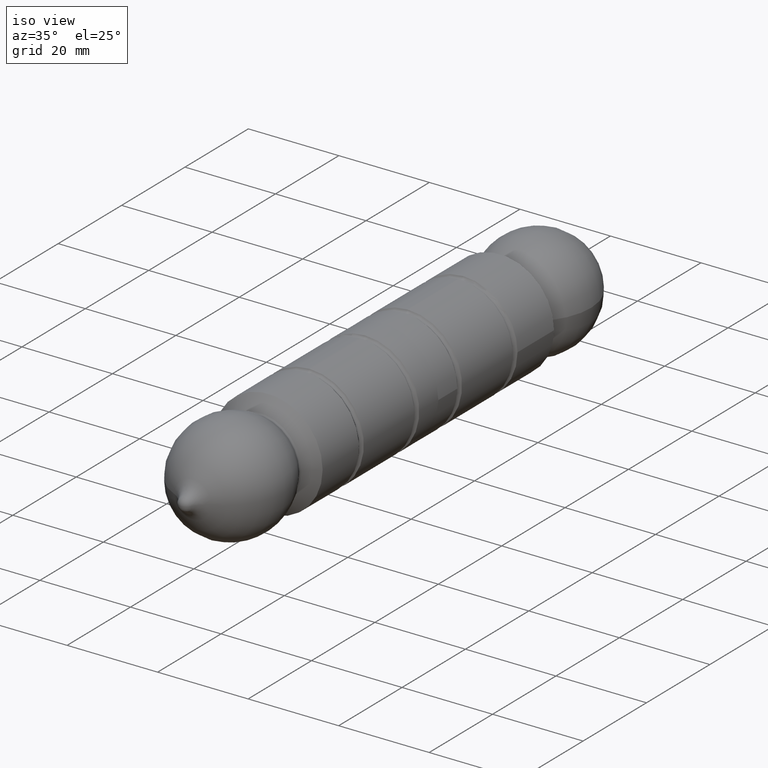
[diagram: clean part render]
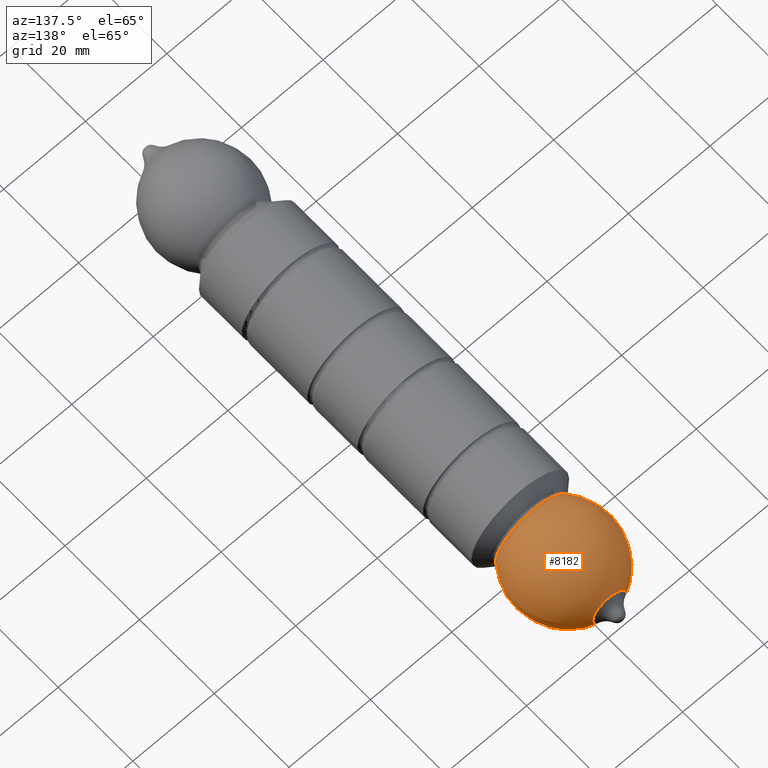
[diagram: tour spotlight — one face highlighted and labeled with its STEP entity id]
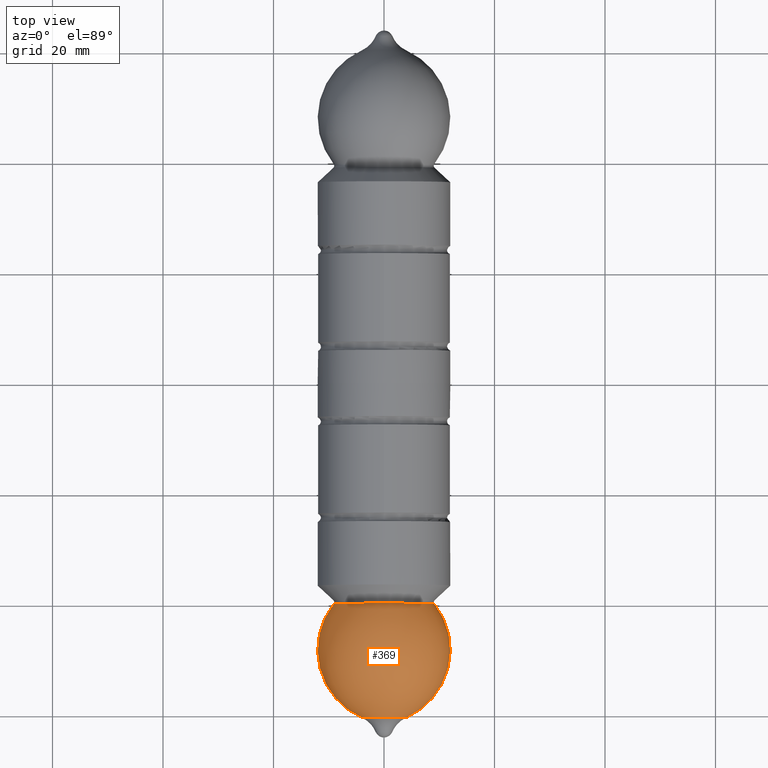
[diagram: tour spotlight — one face highlighted and labeled with its STEP entity id]
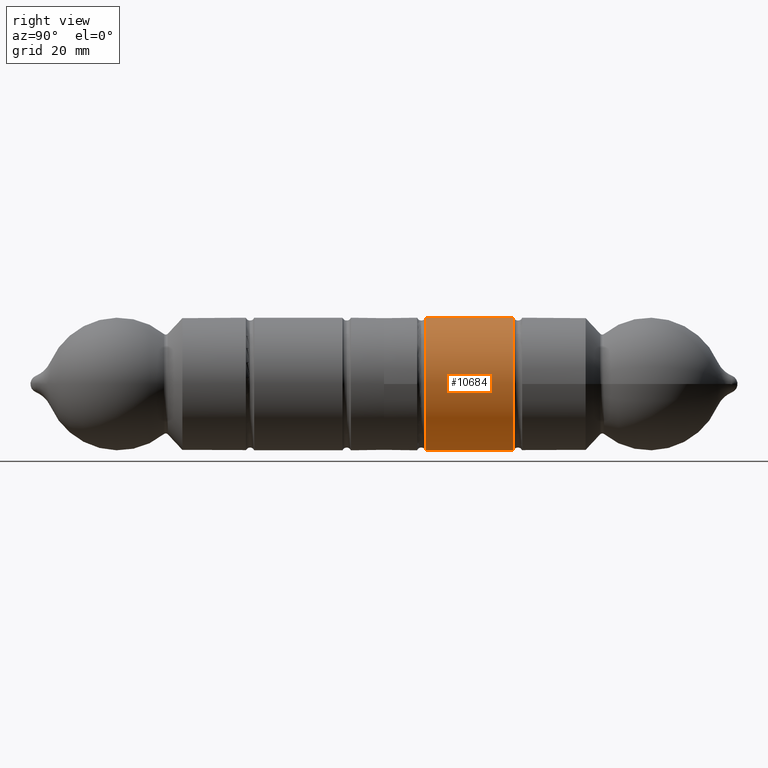
[diagram: tour spotlight — one face highlighted and labeled with its STEP entity id]
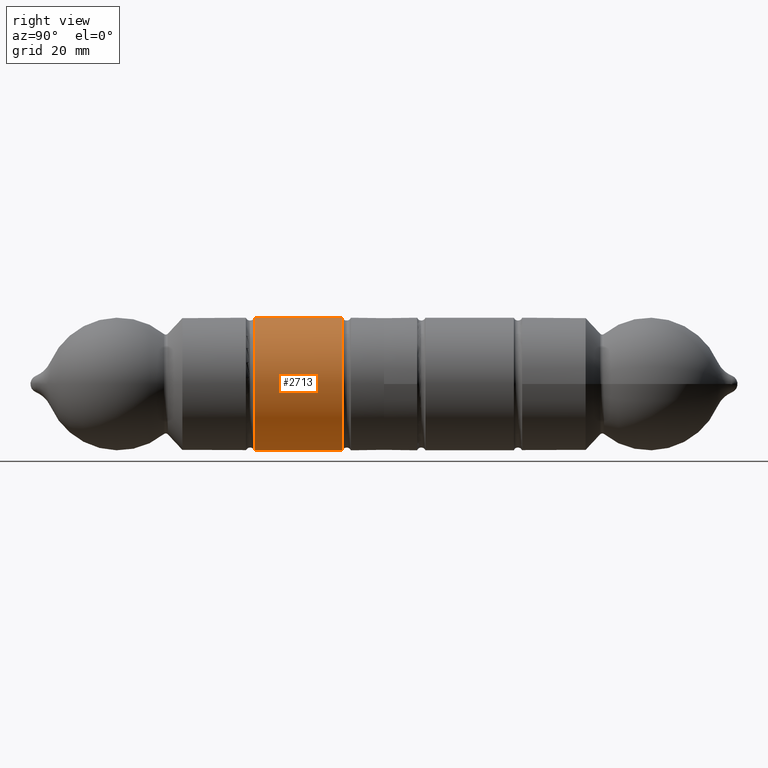
[diagram: tour spotlight — one face highlighted and labeled with its STEP entity id]
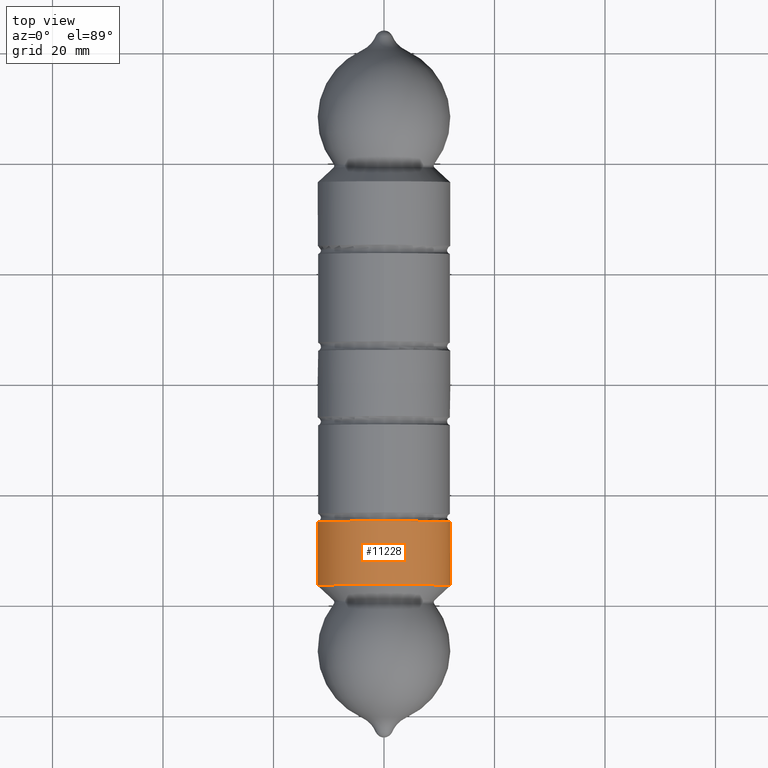
[diagram: tour spotlight — one face highlighted and labeled with its STEP entity id]
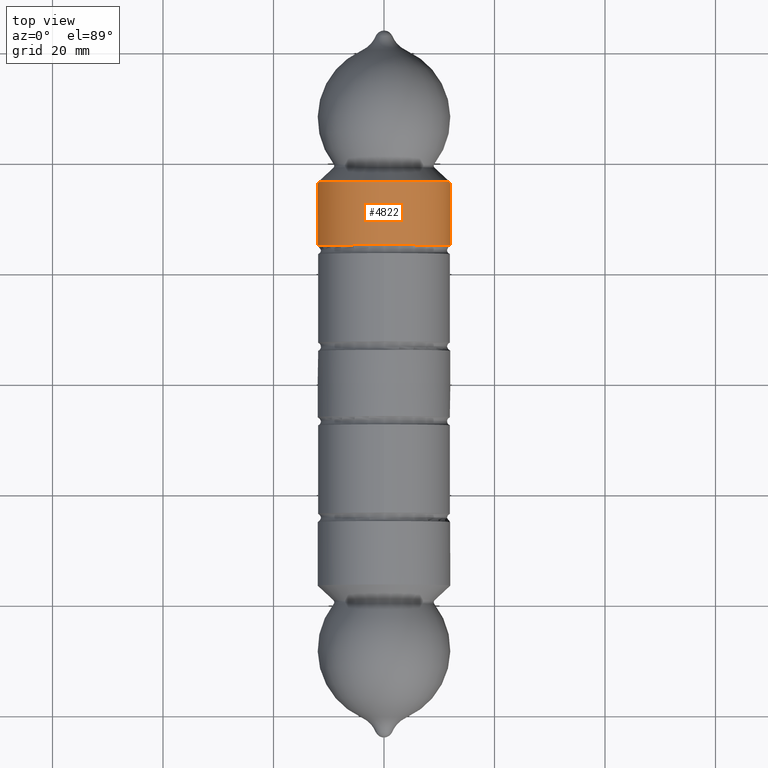
[diagram: tour spotlight — one face highlighted and labeled with its STEP entity id]
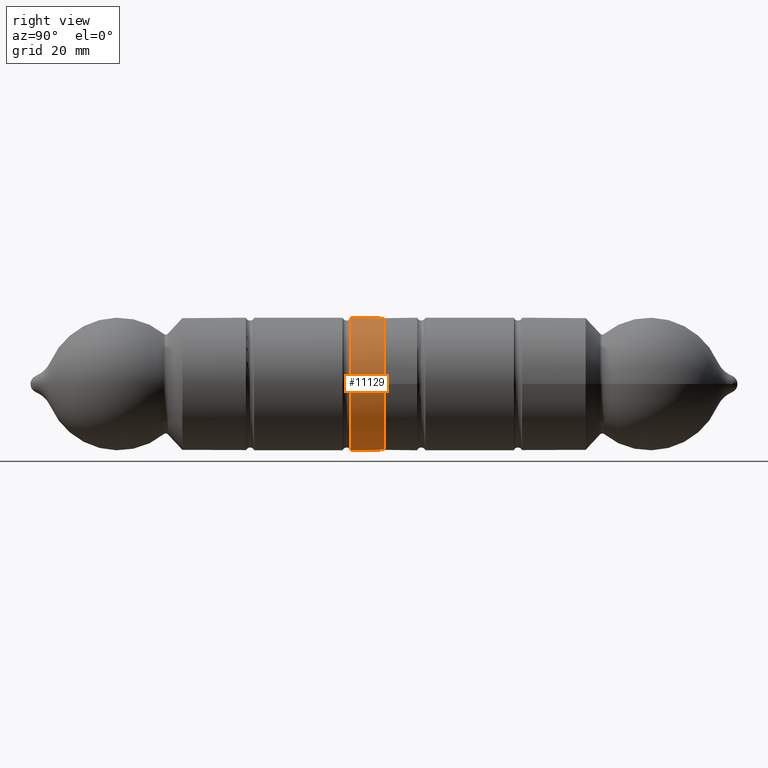
[diagram: tour spotlight — one face highlighted and labeled with its STEP entity id]
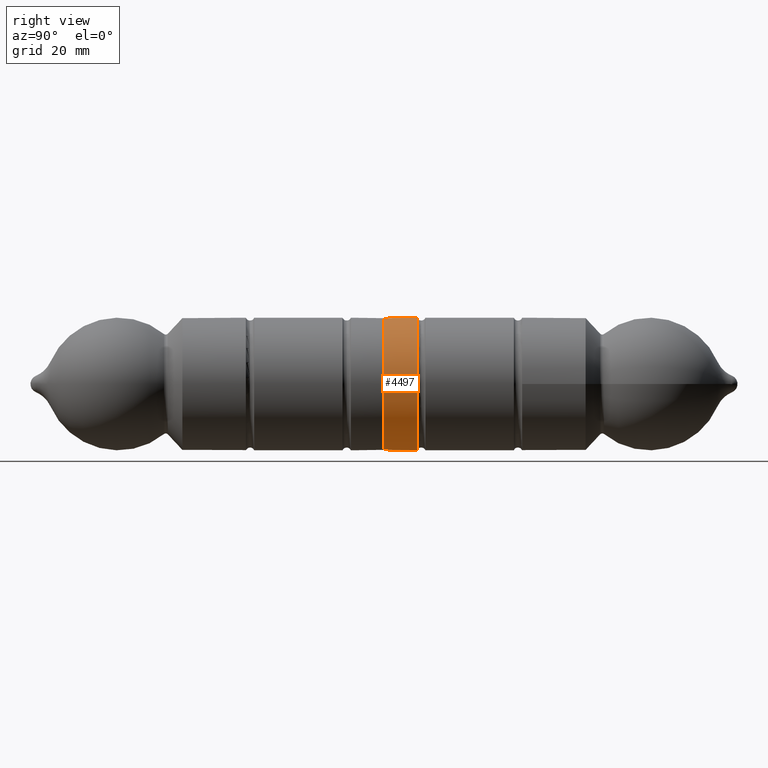
[diagram: tour spotlight — one face highlighted and labeled with its STEP entity id]
A machine part: a face-by-face anatomy tour. The part has 261 B-rep faces; the first image is the clean iso view, then the 8 largest visible faces are spotlighted one at a time (largest first), each with its STEP entity span.

Face 1 — auxiliary view, entity #8182. In plain terms, the highlighted toroidal blend (fillet) surface has major radius 1.4023 mm and minor (blend) radius 13.4023 mm.
Definition (entity closure, byte-faithful):
#114 = AXIS2_PLACEMENT_3D ( 'NONE', #10421, #6579, #4688 ) ;
#250 = CARTESIAN_POINT ( 'NONE',  ( 1.084202172485504237E-15, -48.12635579301864652, 2.076210970086605928E-30 ) ) ;
#889 = CARTESIAN_POINT ( 'NONE',  ( 1.417621974625338587E-15, -60.35932985488481961, 2.603951633711001380E-30 ) ) ;
#1014 = ORIENTED_EDGE ( 'NONE', *, *, #10730, .T. ) ;
#1866 = FACE_OUTER_BOUND ( 'NONE', #4702, .T. ) ;
#4035 = CARTESIAN_POINT ( 'NONE',  ( -9.107895538645529143, -39.81024843494508758, 1.717447190017578383E-30 ) ) ;
#4128 = DIRECTION ( 'NONE',  ( -1.000000000000000000, -2.348637696994927648E-17, 1.013221813891667655E-48 ) ) ;
#4321 = EDGE_LOOP ( 'NONE', ( #1014 ) ) ;
#4688 = DIRECTION ( 'NONE',  ( -1.000000000000000000, 0.000000000000000000, 0.000000000000000000 ) ) ;
#4702 = EDGE_LOOP ( 'NONE', ( #12016 ) ) ;
#4968 = DIRECTION ( 'NONE',  ( -2.348637696994927648E-17, 1.000000000000000000, -4.314083075427431301E-32 ) ) ;
#5354 = CIRCLE ( 'NONE', #8132, 4.072785120239292844 ) ;
#5440 = DIRECTION ( 'NONE',  ( -1.000000000000000000, 0.000000000000000000, 0.000000000000000000 ) ) ;
#6371 = VERTEX_POINT ( 'NONE', #4035 ) ;
#6579 = DIRECTION ( 'NONE',  ( -2.348637696994927648E-17, 1.000000000000000000, -4.314083075427431301E-32 ) ) ;
#7173 = AXIS2_PLACEMENT_3D ( 'NONE', #250, #4968, #4128 ) ;
#7747 = CIRCLE ( 'NONE', #114, 9.107895538645530920 ) ;
#7967 = EDGE_CURVE ( 'NONE', #6371, #6371, #7747, .T. ) ;
#8132 = AXIS2_PLACEMENT_3D ( 'NONE', #889, #10233, #5440 ) ;
#8182 = ADVANCED_FACE ( 'NONE', ( #1866, #11284 ), #11861, .T. ) ;
#10233 = DIRECTION ( 'NONE',  ( -2.348637696994927648E-17, 1.000000000000000000, -4.314083075427431301E-32 ) ) ;
#10421 = CARTESIAN_POINT ( 'NONE',  ( 9.349985020104519349E-16, -39.81024843494508758, 1.717447190017578383E-30 ) ) ;
#10730 = EDGE_CURVE ( 'NONE', #10777, #10777, #5354, .T. ) ;
#10777 = VERTEX_POINT ( 'NONE', #11632 ) ;
#11284 = FACE_OUTER_BOUND ( 'NONE', #4321, .T. ) ;
#11632 = CARTESIAN_POINT ( 'NONE',  ( -4.072785120239291068, -60.35932985488481961, 2.603951633711001380E-30 ) ) ;
#11861 = TOROIDAL_SURFACE ( 'NONE', #7173, -1.402335711291061271, 13.40233571129106593 ) ;
#12016 = ORIENTED_EDGE ( 'NONE', *, *, #7967, .F. ) ;

Face 2 — top view, entity #369. In plain terms, the highlighted toroidal blend (fillet) surface has major radius 1.4023 mm and minor (blend) radius 13.4023 mm.
Definition (entity closure, byte-faithful):
#142 = DIRECTION ( 'NONE',  ( -2.348637696994923334E-17, 1.000000000000000000, -0.000000000000000000 ) ) ;
#369 = ADVANCED_FACE ( 'NONE', ( #6411, #12127 ), #6832, .T. ) ;
#672 = DIRECTION ( 'NONE',  ( -1.000000000000000000, 0.000000000000000000, 0.000000000000000000 ) ) ;
#960 = CIRCLE ( 'NONE', #11220, 4.072785120239267975 ) ;
#1486 = CARTESIAN_POINT ( 'NONE',  ( 9.349985020104519349E-16, -39.81024843494508758, 0.000000000000000000 ) ) ;
#1809 = EDGE_CURVE ( 'NONE', #3859, #3859, #5482, .T. ) ;
#1865 = DIRECTION ( 'NONE',  ( -1.000000000000000000, -2.348637696994923334E-17, 0.000000000000000000 ) ) ;
#2305 = CARTESIAN_POINT ( 'NONE',  ( -4.072785120239266199, -60.35932985488481961, 0.000000000000000000 ) ) ;
#2424 = EDGE_LOOP ( 'NONE', ( #9792 ) ) ;
#3859 = VERTEX_POINT ( 'NONE', #8797 ) ;
#5352 = DIRECTION ( 'NONE',  ( -2.348637696994923334E-17, 1.000000000000000000, -0.000000000000000000 ) ) ;
#5482 = CIRCLE ( 'NONE', #7311, 9.107895538645474076 ) ;
#5931 = VERTEX_POINT ( 'NONE', #2305 ) ;
#6411 = FACE_OUTER_BOUND ( 'NONE', #7962, .T. ) ;
#6832 = TOROIDAL_SURFACE ( 'NONE', #10770, -1.402335711291061271, 13.40233571129106593 ) ;
#7311 = AXIS2_PLACEMENT_3D ( 'NONE', #1486, #5352, #672 ) ;
#7485 = CARTESIAN_POINT ( 'NONE',  ( 1.084202172485504434E-15, -48.12635579301865363, 0.000000000000000000 ) ) ;
#7962 = EDGE_LOOP ( 'NONE', ( #9587 ) ) ;
#8297 = DIRECTION ( 'NONE',  ( -2.348637696994923334E-17, 1.000000000000000000, -0.000000000000000000 ) ) ;
#8797 = CARTESIAN_POINT ( 'NONE',  ( -9.107895538645472300, -39.81024843494508758, 0.000000000000000000 ) ) ;
#8840 = EDGE_CURVE ( 'NONE', #5931, #5931, #960, .T. ) ;
#9165 = DIRECTION ( 'NONE',  ( -1.000000000000000000, 0.000000000000000000, 0.000000000000000000 ) ) ;
#9587 = ORIENTED_EDGE ( 'NONE', *, *, #1809, .F. ) ;
#9792 = ORIENTED_EDGE ( 'NONE', *, *, #8840, .T. ) ;
#10770 = AXIS2_PLACEMENT_3D ( 'NONE', #7485, #142, #1865 ) ;
#11120 = CARTESIAN_POINT ( 'NONE',  ( 1.417621974625336023E-15, -60.35932985488481961, 0.000000000000000000 ) ) ;
#11220 = AXIS2_PLACEMENT_3D ( 'NONE', #11120, #8297, #9165 ) ;
#12127 = FACE_OUTER_BOUND ( 'NONE', #2424, .T. ) ;

Face 3 — right view, entity #10684. In plain terms, the highlighted cylindrical surface (bore or boss wall) has radius 12 mm, axis along (0, -1, -0).
Definition (entity closure, byte-faithful):
#49 = EDGE_LOOP ( 'NONE', ( #7461 ) ) ;
#387 = AXIS2_PLACEMENT_3D ( 'NONE', #7000, #6228, #3421 ) ;
#466 = VERTEX_POINT ( 'NONE', #6338 ) ;
#848 = EDGE_CURVE ( 'NONE', #5321, #5321, #10800, .T. ) ;
#1209 = AXIS2_PLACEMENT_3D ( 'NONE', #1490, #10912, #6230 ) ;
#1490 = CARTESIAN_POINT ( 'NONE',  ( 0.000000000000000000, -0.000000000000000000, 0.000000000000000000 ) ) ;
#2292 = CIRCLE ( 'NONE', #7603, 12.00000000000007994 ) ;
#3421 = DIRECTION ( 'NONE',  ( 0.000000000000000000, 0.000000000000000000, 1.000000000000000000 ) ) ;
#3434 = DIRECTION ( 'NONE',  ( 0.000000000000000000, 0.000000000000000000, -1.000000000000000000 ) ) ;
#4069 = CARTESIAN_POINT ( 'NONE',  ( 1.761478272746196876E-16, -7.500000000000007105, 12.00000000000007994 ) ) ;
#5321 = VERTEX_POINT ( 'NONE', #4069 ) ;
#6228 = DIRECTION ( 'NONE',  ( 1.294224922628226434E-31, 1.000000000000000000, -4.314083075427431301E-32 ) ) ;
#6230 = DIRECTION ( 'NONE',  ( -1.000000000000000000, -2.348637696994921793E-17, 1.013221813891663553E-48 ) ) ;
#6338 = CARTESIAN_POINT ( 'NONE',  ( 5.519298587938071253E-16, -23.50000000000000711, -12.00000000000007994 ) ) ;
#6382 = CYLINDRICAL_SURFACE ( 'NONE', #1209, 12.00000000000007994 ) ;
#7000 = CARTESIAN_POINT ( 'NONE',  ( 1.761478272746196876E-16, -7.500000000000007105, 3.235562306570575501E-31 ) ) ;
#7461 = ORIENTED_EDGE ( 'NONE', *, *, #848, .F. ) ;
#7603 = AXIS2_PLACEMENT_3D ( 'NONE', #8108, #9075, #3434 ) ;
#8108 = CARTESIAN_POINT ( 'NONE',  ( 5.519298587938071253E-16, -23.50000000000000711, 1.013809522725446558E-30 ) ) ;
#8373 = EDGE_CURVE ( 'NONE', #466, #466, #2292, .T. ) ;
#8585 = FACE_OUTER_BOUND ( 'NONE', #49, .T. ) ;
#9075 = DIRECTION ( 'NONE',  ( -1.294224922628226434E-31, -1.000000000000000000, 4.314083075427431301E-32 ) ) ;
#9405 = ORIENTED_EDGE ( 'NONE', *, *, #8373, .F. ) ;
#9477 = FACE_OUTER_BOUND ( 'NONE', #11722, .T. ) ;
#10684 = ADVANCED_FACE ( 'NONE', ( #8585, #9477 ), #6382, .T. ) ;
#10800 = CIRCLE ( 'NONE', #387, 12.00000000000007994 ) ;
#10912 = DIRECTION ( 'NONE',  ( -2.348637696994927648E-17, 1.000000000000000000, -4.314083075427431301E-32 ) ) ;
#11722 = EDGE_LOOP ( 'NONE', ( #9405 ) ) ;

Face 4 — right view, entity #2713. In plain terms, the highlighted cylindrical surface (bore or boss wall) has radius 12 mm, axis along (-0, 1, 0).
Definition (entity closure, byte-faithful):
#703 = CARTESIAN_POINT ( 'NONE',  ( 5.519298587938071253E-16, -23.50000000000000711, -12.00000000000000533 ) ) ;
#964 = CIRCLE ( 'NONE', #6257, 12.00000000000000533 ) ;
#1315 = DIRECTION ( 'NONE',  ( -0.000000000000000000, 1.000000000000000000, -0.000000000000000000 ) ) ;
#1650 = VERTEX_POINT ( 'NONE', #703 ) ;
#1807 = CIRCLE ( 'NONE', #4825, 12.00000000000000533 ) ;
#2713 = ADVANCED_FACE ( 'NONE', ( #5965, #9362 ), #4333, .T. ) ;
#3059 = DIRECTION ( 'NONE',  ( 0.000000000000000000, 0.000000000000000000, -1.000000000000000000 ) ) ;
#4333 = CYLINDRICAL_SURFACE ( 'NONE', #8737, 12.00000000000000533 ) ;
#4541 = EDGE_LOOP ( 'NONE', ( #6038 ) ) ;
#4825 = AXIS2_PLACEMENT_3D ( 'NONE', #5998, #1315, #7924 ) ;
#4889 = EDGE_CURVE ( 'NONE', #5474, #5474, #1807, .T. ) ;
#5474 = VERTEX_POINT ( 'NONE', #7743 ) ;
#5965 = FACE_OUTER_BOUND ( 'NONE', #8822, .T. ) ;
#5998 = CARTESIAN_POINT ( 'NONE',  ( 1.761478272746193425E-16, -7.500000000000004441, 0.000000000000000000 ) ) ;
#6038 = ORIENTED_EDGE ( 'NONE', *, *, #10907, .F. ) ;
#6210 = ORIENTED_EDGE ( 'NONE', *, *, #4889, .F. ) ;
#6257 = AXIS2_PLACEMENT_3D ( 'NONE', #6838, #10559, #3059 ) ;
#6838 = CARTESIAN_POINT ( 'NONE',  ( 5.519298587938071253E-16, -23.50000000000000711, 0.000000000000000000 ) ) ;
#7638 = DIRECTION ( 'NONE',  ( -2.348637696994923334E-17, 1.000000000000000000, -0.000000000000000000 ) ) ;
#7743 = CARTESIAN_POINT ( 'NONE',  ( 1.761478272746193425E-16, -7.500000000000004441, 12.00000000000000533 ) ) ;
#7924 = DIRECTION ( 'NONE',  ( 0.000000000000000000, 0.000000000000000000, 1.000000000000000000 ) ) ;
#8535 = DIRECTION ( 'NONE',  ( -1.000000000000000000, -2.348637696994923642E-17, 0.000000000000000000 ) ) ;
#8737 = AXIS2_PLACEMENT_3D ( 'NONE', #10478, #7638, #8535 ) ;
#8822 = EDGE_LOOP ( 'NONE', ( #6210 ) ) ;
#9362 = FACE_OUTER_BOUND ( 'NONE', #4541, .T. ) ;
#10478 = CARTESIAN_POINT ( 'NONE',  ( 0.000000000000000000, 0.000000000000000000, 0.000000000000000000 ) ) ;
#10559 = DIRECTION ( 'NONE',  ( 0.000000000000000000, -1.000000000000000000, 0.000000000000000000 ) ) ;
#10907 = EDGE_CURVE ( 'NONE', #1650, #1650, #964, .T. ) ;

Face 5 — top view, entity #11228. In plain terms, the highlighted cylindrical surface (bore or boss wall) has radius 12 mm, axis along (-0, 1, 0).
Definition (entity closure, byte-faithful):
#1030 = DIRECTION ( 'NONE',  ( 0.000000000000000000, 0.000000000000000000, 1.000000000000000000 ) ) ;
#1127 = CARTESIAN_POINT ( 'NONE',  ( -12.00000000000000533, -36.50000000000000000, 0.000000000000000000 ) ) ;
#1216 = CIRCLE ( 'NONE', #9857, 12.00000000000000533 ) ;
#2171 = EDGE_CURVE ( 'NONE', #9158, #9158, #4641, .T. ) ;
#2237 = AXIS2_PLACEMENT_3D ( 'NONE', #10299, #9426, #6623 ) ;
#3027 = CARTESIAN_POINT ( 'NONE',  ( 5.871594242487309445E-16, -25.00000000000000711, 12.00000000000000533 ) ) ;
#3290 = FACE_OUTER_BOUND ( 'NONE', #11332, .T. ) ;
#3430 = CYLINDRICAL_SURFACE ( 'NONE', #2237, 12.00000000000000533 ) ;
#3692 = AXIS2_PLACEMENT_3D ( 'NONE', #10822, #5166, #11758 ) ;
#4641 = CIRCLE ( 'NONE', #3692, 12.00000000000000533 ) ;
#5107 = ORIENTED_EDGE ( 'NONE', *, *, #6475, .F. ) ;
#5166 = DIRECTION ( 'NONE',  ( -2.348637696994923334E-17, 1.000000000000000000, -0.000000000000000000 ) ) ;
#6475 = EDGE_CURVE ( 'NONE', #7546, #7546, #1216, .T. ) ;
#6623 = DIRECTION ( 'NONE',  ( -1.000000000000000000, -2.348637696994923642E-17, 0.000000000000000000 ) ) ;
#6646 = DIRECTION ( 'NONE',  ( -0.000000000000000000, 1.000000000000000000, -0.000000000000000000 ) ) ;
#7384 = EDGE_LOOP ( 'NONE', ( #5107 ) ) ;
#7546 = VERTEX_POINT ( 'NONE', #3027 ) ;
#7988 = ORIENTED_EDGE ( 'NONE', *, *, #2171, .T. ) ;
#9158 = VERTEX_POINT ( 'NONE', #1127 ) ;
#9426 = DIRECTION ( 'NONE',  ( -2.348637696994923334E-17, 1.000000000000000000, -0.000000000000000000 ) ) ;
#9857 = AXIS2_PLACEMENT_3D ( 'NONE', #10372, #6646, #1030 ) ;
#10299 = CARTESIAN_POINT ( 'NONE',  ( 0.000000000000000000, 0.000000000000000000, 0.000000000000000000 ) ) ;
#10372 = CARTESIAN_POINT ( 'NONE',  ( 5.871594242487309445E-16, -25.00000000000000711, 0.000000000000000000 ) ) ;
#10526 = FACE_OUTER_BOUND ( 'NONE', #7384, .T. ) ;
#10822 = CARTESIAN_POINT ( 'NONE',  ( 8.572527594031470232E-16, -36.50000000000000000, 0.000000000000000000 ) ) ;
#11228 = ADVANCED_FACE ( 'NONE', ( #3290, #10526 ), #3430, .T. ) ;
#11332 = EDGE_LOOP ( 'NONE', ( #7988 ) ) ;
#11758 = DIRECTION ( 'NONE',  ( -1.000000000000000000, 0.000000000000000000, 0.000000000000000000 ) ) ;

Face 6 — top view, entity #4822. In plain terms, the highlighted cylindrical surface (bore or boss wall) has radius 12 mm, axis along (0, -1, -0).
Definition (entity closure, byte-faithful):
#1114 = DIRECTION ( 'NONE',  ( 0.000000000000000000, 0.000000000000000000, 1.000000000000000000 ) ) ;
#2187 = DIRECTION ( 'NONE',  ( -2.348637696994927648E-17, 1.000000000000000000, -4.314083075427431301E-32 ) ) ;
#2904 = EDGE_CURVE ( 'NONE', #3262, #3262, #11415, .T. ) ;
#3262 = VERTEX_POINT ( 'NONE', #8648 ) ;
#3482 = AXIS2_PLACEMENT_3D ( 'NONE', #6738, #8666, #1114 ) ;
#3917 = DIRECTION ( 'NONE',  ( -1.000000000000000000, -2.348637696994921793E-17, 1.013221813891663553E-48 ) ) ;
#4822 = ADVANCED_FACE ( 'NONE', ( #11961, #11251 ), #8714, .T. ) ;
#5040 = AXIS2_PLACEMENT_3D ( 'NONE', #11447, #11560, #3917 ) ;
#5060 = DIRECTION ( 'NONE',  ( -1.000000000000000000, 0.000000000000000000, 0.000000000000000000 ) ) ;
#5425 = AXIS2_PLACEMENT_3D ( 'NONE', #7813, #2187, #5060 ) ;
#5660 = EDGE_LOOP ( 'NONE', ( #7702 ) ) ;
#5945 = EDGE_LOOP ( 'NONE', ( #7909 ) ) ;
#6738 = CARTESIAN_POINT ( 'NONE',  ( 5.871594242487309445E-16, -25.00000000000000711, 1.078520768856858208E-30 ) ) ;
#6809 = CIRCLE ( 'NONE', #3482, 12.00000000000007994 ) ;
#6812 = EDGE_CURVE ( 'NONE', #8115, #8115, #6809, .T. ) ;
#7702 = ORIENTED_EDGE ( 'NONE', *, *, #6812, .F. ) ;
#7813 = CARTESIAN_POINT ( 'NONE',  ( 8.572527594031471218E-16, -36.49999999999999289, 1.574640322531011565E-30 ) ) ;
#7909 = ORIENTED_EDGE ( 'NONE', *, *, #2904, .T. ) ;
#8115 = VERTEX_POINT ( 'NONE', #11521 ) ;
#8648 = CARTESIAN_POINT ( 'NONE',  ( -12.00000000000007994, -36.49999999999999289, 1.574640322531011565E-30 ) ) ;
#8666 = DIRECTION ( 'NONE',  ( 1.294224922628226434E-31, 1.000000000000000000, -4.314083075427431301E-32 ) ) ;
#8714 = CYLINDRICAL_SURFACE ( 'NONE', #5040, 12.00000000000007994 ) ;
#11251 = FACE_OUTER_BOUND ( 'NONE', #5660, .T. ) ;
#11415 = CIRCLE ( 'NONE', #5425, 12.00000000000007994 ) ;
#11447 = CARTESIAN_POINT ( 'NONE',  ( 0.000000000000000000, -0.000000000000000000, 0.000000000000000000 ) ) ;
#11521 = CARTESIAN_POINT ( 'NONE',  ( 5.871594242487309445E-16, -25.00000000000000711, 12.00000000000007994 ) ) ;
#11560 = DIRECTION ( 'NONE',  ( -2.348637696994927648E-17, 1.000000000000000000, -4.314083075427431301E-32 ) ) ;
#11961 = FACE_OUTER_BOUND ( 'NONE', #5945, .T. ) ;

Face 7 — right view, entity #11129. In plain terms, the highlighted cylindrical surface (bore or boss wall) has radius 12 mm, axis along (-0, 1, 0).
Definition (entity closure, byte-faithful):
#675 = EDGE_LOOP ( 'NONE', ( #4831 ) ) ;
#778 = VERTEX_POINT ( 'NONE', #11036 ) ;
#810 = CYLINDRICAL_SURFACE ( 'NONE', #10685, 12.00000000000000533 ) ;
#931 = CARTESIAN_POINT ( 'NONE',  ( 1.409182618196954494E-16, -6.000000000000001776, 0.000000000000000000 ) ) ;
#1120 = EDGE_LOOP ( 'NONE', ( #4947 ) ) ;
#1880 = DIRECTION ( 'NONE',  ( 0.000000000000000000, 0.000000000000000000, -1.000000000000000000 ) ) ;
#2699 = CIRCLE ( 'NONE', #3786, 12.00000000000000533 ) ;
#3397 = AXIS2_PLACEMENT_3D ( 'NONE', #4667, #7371, #9238 ) ;
#3606 = DIRECTION ( 'NONE',  ( 0.000000000000000000, -1.000000000000000000, 0.000000000000000000 ) ) ;
#3786 = AXIS2_PLACEMENT_3D ( 'NONE', #931, #3606, #1880 ) ;
#4028 = FACE_OUTER_BOUND ( 'NONE', #675, .T. ) ;
#4667 = CARTESIAN_POINT ( 'NONE',  ( 8.057444657085553473E-33, -3.430688635967580784E-16, 0.000000000000000000 ) ) ;
#4831 = ORIENTED_EDGE ( 'NONE', *, *, #9212, .F. ) ;
#4947 = ORIENTED_EDGE ( 'NONE', *, *, #5576, .F. ) ;
#5188 = FACE_OUTER_BOUND ( 'NONE', #1120, .T. ) ;
#5576 = EDGE_CURVE ( 'NONE', #10497, #10497, #2699, .T. ) ;
#6429 = DIRECTION ( 'NONE',  ( -1.000000000000000000, -2.348637696994923642E-17, 0.000000000000000000 ) ) ;
#7371 = DIRECTION ( 'NONE',  ( -2.348637696994923334E-17, 1.000000000000000000, -0.000000000000000000 ) ) ;
#9212 = EDGE_CURVE ( 'NONE', #778, #778, #10082, .T. ) ;
#9238 = DIRECTION ( 'NONE',  ( -1.000000000000000000, -2.348637696994923642E-17, 0.000000000000000000 ) ) ;
#10082 = CIRCLE ( 'NONE', #3397, 12.00000000000000533 ) ;
#10497 = VERTEX_POINT ( 'NONE', #10556 ) ;
#10556 = CARTESIAN_POINT ( 'NONE',  ( 1.409182618196954494E-16, -6.000000000000001776, -12.00000000000000533 ) ) ;
#10685 = AXIS2_PLACEMENT_3D ( 'NONE', #11033, #12046, #6429 ) ;
#11033 = CARTESIAN_POINT ( 'NONE',  ( 0.000000000000000000, 0.000000000000000000, 0.000000000000000000 ) ) ;
#11036 = CARTESIAN_POINT ( 'NONE',  ( -12.00000000000000533, -6.249053872361489771E-16, 0.000000000000000000 ) ) ;
#11129 = ADVANCED_FACE ( 'NONE', ( #4028, #5188 ), #810, .T. ) ;
#12046 = DIRECTION ( 'NONE',  ( -2.348637696994923334E-17, 1.000000000000000000, -0.000000000000000000 ) ) ;

Face 8 — right view, entity #4497. In plain terms, the highlighted cylindrical surface (bore or boss wall) has radius 12 mm, axis along (0, -1, -0).
Definition (entity closure, byte-faithful):
#61 = DIRECTION ( 'NONE',  ( -1.000000000000000000, -2.348637696994921793E-17, 1.013221813891663553E-48 ) ) ;
#1520 = DIRECTION ( 'NONE',  ( -2.348637696994927648E-17, 1.000000000000000000, -4.314083075427431301E-32 ) ) ;
#1905 = DIRECTION ( 'NONE',  ( -2.348637696994927648E-17, 1.000000000000000000, -4.314083075427431301E-32 ) ) ;
#2119 = FACE_OUTER_BOUND ( 'NONE', #10913, .T. ) ;
#3572 = VERTEX_POINT ( 'NONE', #4104 ) ;
#3672 = CARTESIAN_POINT ( 'NONE',  ( 1.409182618196954247E-16, -6.000000000000005329, 2.588449845256460313E-31 ) ) ;
#4104 = CARTESIAN_POINT ( 'NONE',  ( 1.409182618196954247E-16, -6.000000000000005329, -12.00000000000007994 ) ) ;
#4497 = ADVANCED_FACE ( 'NONE', ( #10661, #2119 ), #10945, .T. ) ;
#4621 = DIRECTION ( 'NONE',  ( 0.000000000000000000, 0.000000000000000000, -1.000000000000000000 ) ) ;
#4695 = ORIENTED_EDGE ( 'NONE', *, *, #11087, .F. ) ;
#4746 = VERTEX_POINT ( 'NONE', #8880 ) ;
#5411 = ORIENTED_EDGE ( 'NONE', *, *, #10756, .F. ) ;
#5692 = CARTESIAN_POINT ( 'NONE',  ( 0.000000000000000000, -0.000000000000000000, 0.000000000000000000 ) ) ;
#6386 = DIRECTION ( 'NONE',  ( -1.000000000000000000, -2.348637696994921793E-17, 1.013221813891663553E-48 ) ) ;
#6474 = DIRECTION ( 'NONE',  ( -1.294224922628226434E-31, -1.000000000000000000, 4.314083075427431301E-32 ) ) ;
#6649 = AXIS2_PLACEMENT_3D ( 'NONE', #7220, #1520, #6386 ) ;
#7220 = CARTESIAN_POINT ( 'NONE',  ( 8.057444657085595895E-33, 8.938410589626661850E-64, -3.167514480201359053E-95 ) ) ;
#8529 = EDGE_LOOP ( 'NONE', ( #4695 ) ) ;
#8880 = CARTESIAN_POINT ( 'NONE',  ( -12.00000000000007994, -2.818365236393924764E-16, 1.215866176670004347E-47 ) ) ;
#9169 = CIRCLE ( 'NONE', #9811, 12.00000000000007994 ) ;
#9811 = AXIS2_PLACEMENT_3D ( 'NONE', #3672, #6474, #4621 ) ;
#10661 = FACE_OUTER_BOUND ( 'NONE', #8529, .T. ) ;
#10756 = EDGE_CURVE ( 'NONE', #3572, #3572, #9169, .T. ) ;
#10805 = CIRCLE ( 'NONE', #6649, 12.00000000000007994 ) ;
#10913 = EDGE_LOOP ( 'NONE', ( #5411 ) ) ;
#10945 = CYLINDRICAL_SURFACE ( 'NONE', #11043, 12.00000000000007994 ) ;
#11043 = AXIS2_PLACEMENT_3D ( 'NONE', #5692, #1905, #61 ) ;
#11087 = EDGE_CURVE ( 'NONE', #4746, #4746, #10805, .T. ) ;